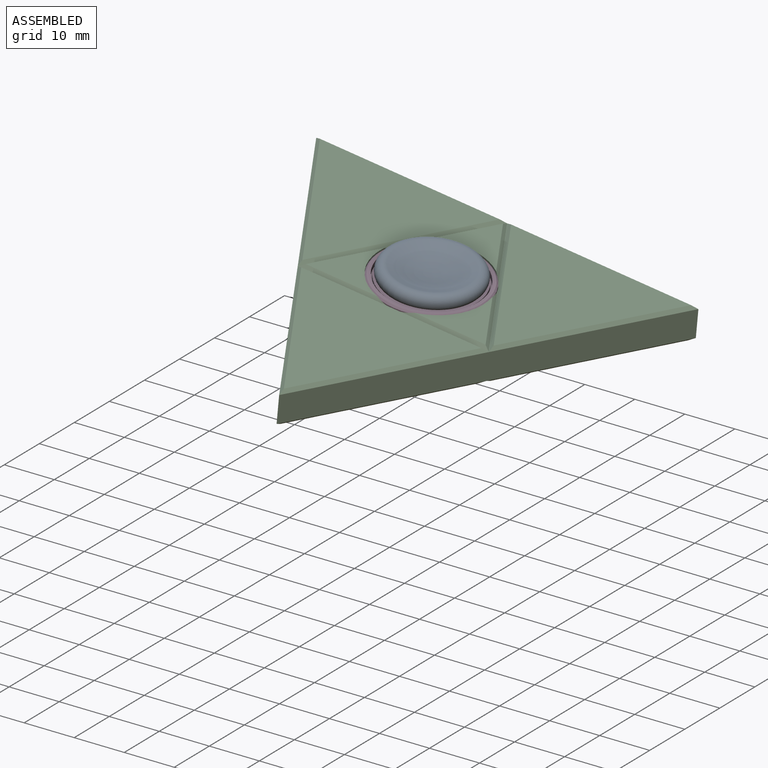
[diagram: assembled view]
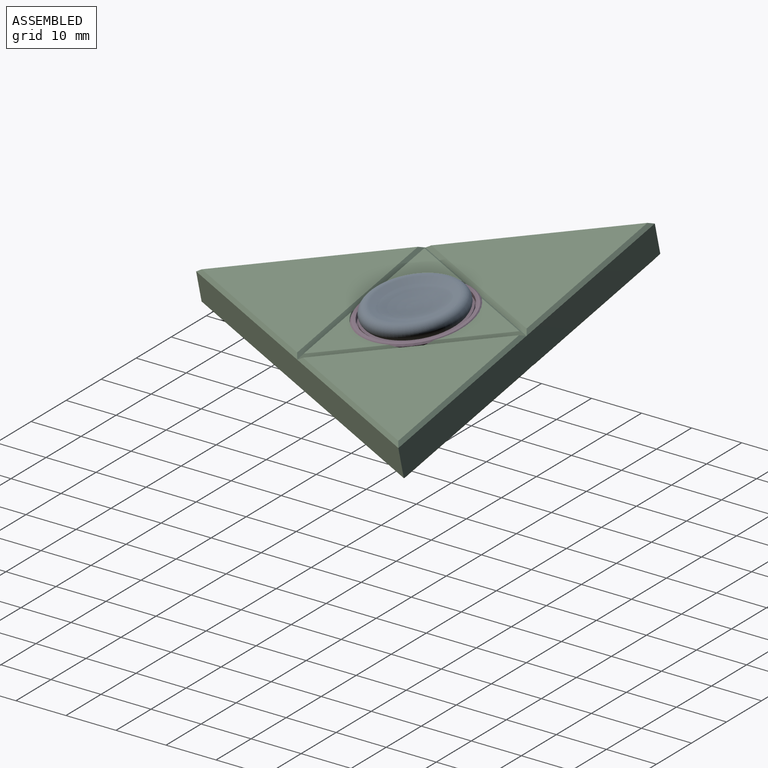
[diagram: assembled view, second angle]
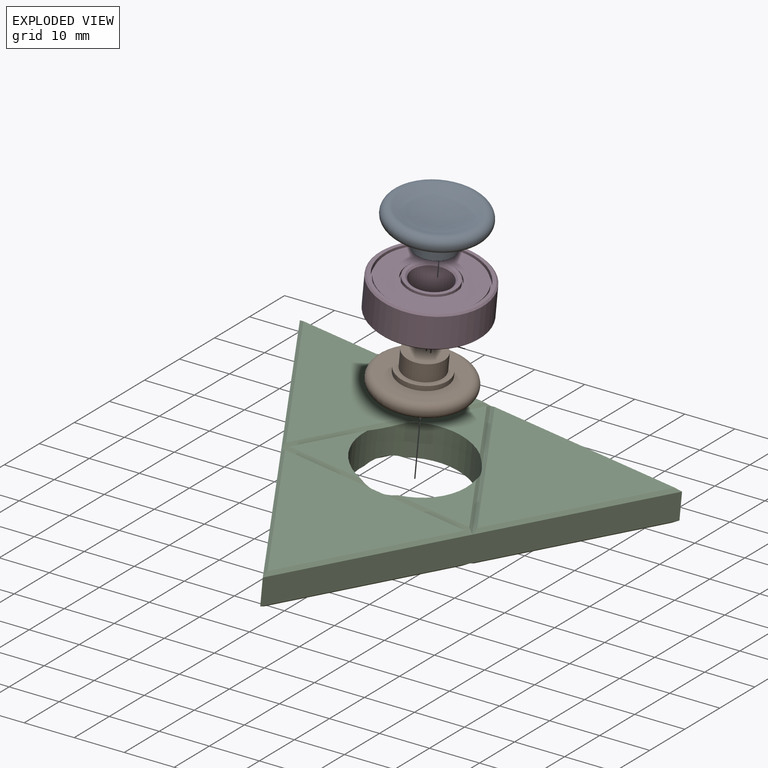
[diagram: exploded view]
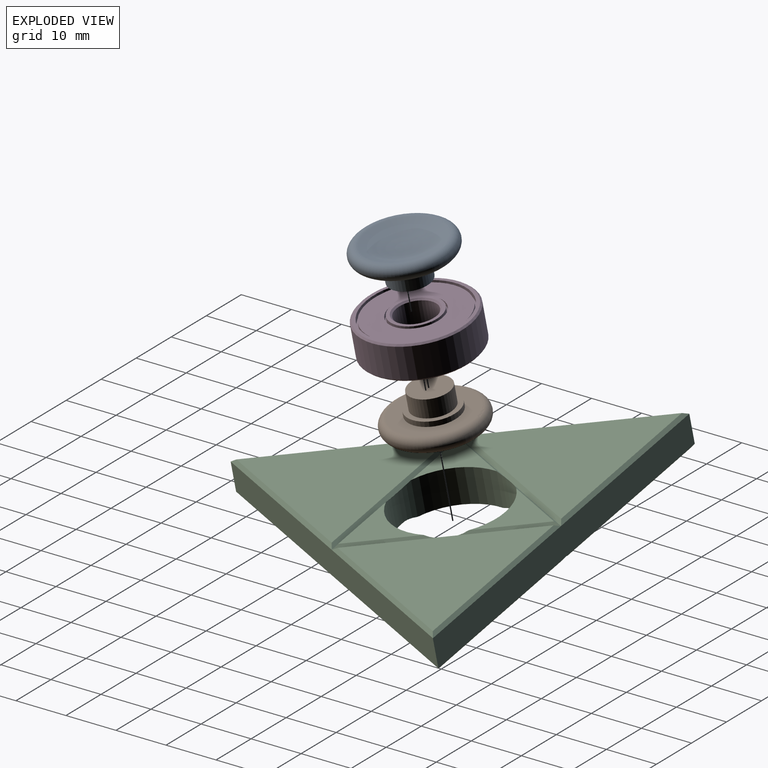
[diagram: exploded view, second angle]
ASSEMBLY  parts=4 mates=3
PART A: 7 faces, bbox 20.6x20.6x7.6 mm
  f0: torus R=8.03mm, axis (0,0,-1), area 292.7mm2, adj f1,f2
  f1: plane 16.05x16.05mm, normal (0,0,-1), area 119.8mm2, adj f0,f3
  f2: sphere r=20.88mm, area 182.2mm2, adj f0
  f3: cylinder r=5.12mm len=10.25mm, axis (0,0,1), area 32.2mm2, adj f1,f4
  f4: plane 10.25x10.25mm, normal (0,0,-1), area 30.3mm2, adj f3,f5
  f5: cylinder r=4.07mm len=8.15mm, axis (0,0,1), area 91.9mm2, adj f4,f6
  f6: plane 8.15x8.15mm, normal (0,0,-1), area 52.2mm2, adj f5
PART B: same geometry as A
PART C: 49 faces, bbox 76.2x66x7 mm
  f0: plane 65.99x38.1mm, normal (-0.87,0.5,0), area 435.5mm2, adj f12,f13,f16,f24,f27,f32,f34,f39
  f1: cylinder r=11mm len=22mm, axis (0,0,-1), area 462.9mm2, adj f2,f3,f4,f7,f8,f10,f16,f17
  f2: plane 14.19x12.27mm, normal (0,0,-1), area 61.9mm2, adj f1,f40,f41
  f3: plane 14.18x12.29mm, normal (0,0,-1), area 61.9mm2, adj f1,f44,f45
  f4: plane 14.21x12.3mm, normal (0,0,-1), area 62.1mm2, adj f1,f42,f43
  f5: plane 35.89x31.08mm, normal (0,0,-1), area 557.6mm2, adj f37,f38,f39
  f6: plane 35.89x31.08mm, normal (0,0,-1), area 557.6mm2, adj f34,f35,f36
  f7: plane 13.89x11.57mm, normal (0,0,1), area 58.3mm2, adj f1,f28,f29
  f8: plane 14.21x12.3mm, normal (0,0,1), area 62.1mm2, adj f1,f20,f33
  f9: plane 35.87x31.07mm, normal (0,0,1), area 557.2mm2, adj f21,f22,f23
  f10: plane 14.18x12.29mm, normal (0,0,1), area 61.9mm2, adj f1,f17,f18
  f11: plane 35.89x31.08mm, normal (0,0,1), area 557.6mm2, adj f30,f31,f32
  f12: plane 76.2x5.72mm, normal (0,-1,0), area 435.5mm2, adj f0,f13,f16,f23,f25,f27,f36,f47
  f13: plane 65.99x38.1mm, normal (0.87,0.5,0), area 435.5mm2, adj f0,f12,f16,f22,f27,f31,f38,f46
  f14: plane 35.89x31.08mm, normal (0,0,1), area 557.6mm2, adj f24,f25,f26
  f15: plane 35.87x31.07mm, normal (0,0,-1), area 557.2mm2, adj f46,f47,f48
  f16: plane 38.12x33.01mm, normal (0,0,1), area 3.8mm2, adj f0,f1,f12,f13,f17,f18,f19,f20
  f17: plane 15.98x9.23mm, normal (-0.61,-0.35,0.71), area 14.3mm2, adj f1,f10,f16,f18
  f18: plane 15.81x9.13mm, normal (0.61,-0.35,0.71), area 14.2mm2, adj f1,f10,f16,f17
  f19: plane 15.81x9.13mm, normal (0.61,-0.35,0.71), area 10.4mm2, adj f1,f16,f28,f29
  f20: plane 16x9.24mm, normal (-0.61,-0.35,0.71), area 14.3mm2, adj f1,f8,f16,f33
  f21: plane 32.97x19.04mm, normal (-0.61,0.35,0.71), area 33.2mm2, adj f9,f16,f22,f23
  f22: plane 32.97x19.04mm, normal (0.61,0.35,0.71), area 33.2mm2, adj f9,f13,f21,f23
  f23: plane 38.07x0.64mm, normal (0,-0.71,0.71), area 33.2mm2, adj f9,f12,f21,f22
  f24: plane 32.98x19.04mm, normal (-0.61,0.35,0.71), area 33.2mm2, adj f0,f14,f25,f26
  f25: plane 38.09x0.64mm, normal (0,-0.71,0.71), area 33.2mm2, adj f12,f14,f24,f26
  f26: plane 32.98x19.04mm, normal (0.61,0.35,0.71), area 33.2mm2, adj f14,f16,f24,f25
  f27: plane 38.12x33.01mm, normal (0,0,-1), area 3.8mm2, adj f0,f1,f12,f13,f35,f37,f40,f41
  f28: plane 13.04x7.54mm, normal (0.33,-0.19,0.92), area 6.9mm2, adj f1,f7,f19,f29
  f29: plane 18.46x0.64mm, normal (0,0.71,0.71), area 14.3mm2, adj f1,f7,f16,f19,f28
  f30: plane 38.09x0.64mm, normal (0,-0.71,0.71), area 33.2mm2, adj f11,f16,f31,f32
  f31: plane 32.98x19.04mm, normal (0.61,0.35,0.71), area 33.2mm2, adj f11,f13,f30,f32
  f32: plane 32.98x19.04mm, normal (-0.61,0.35,0.71), area 33.2mm2, adj f0,f11,f30,f31
  f33: plane 18.47x0.64mm, normal (0,0.71,0.71), area 14.3mm2, adj f1,f8,f16,f20
  f34: plane 32.98x19.04mm, normal (-0.61,0.35,-0.71), area 33.2mm2, adj f0,f6,f35,f36
  f35: plane 32.98x19.04mm, normal (0.61,0.35,-0.71), area 33.2mm2, adj f6,f27,f34,f36
  f36: plane 38.09x0.64mm, normal (0,-0.71,-0.71), area 33.2mm2, adj f6,f12,f34,f35
  f37: plane 38.09x0.64mm, normal (0,-0.71,-0.71), area 33.2mm2, adj f5,f27,f38,f39
  f38: plane 32.98x19.04mm, normal (0.61,0.35,-0.71), area 33.2mm2, adj f5,f13,f37,f39
  f39: plane 32.98x19.04mm, normal (-0.61,0.35,-0.71), area 33.2mm2, adj f0,f5,f37,f38
  f40: plane 15.81x9.13mm, normal (0.61,-0.35,-0.71), area 14.2mm2, adj f1,f2,f27,f41
  f41: plane 18.46x0.64mm, normal (0,0.71,-0.71), area 14.3mm2, adj f1,f2,f27,f40
  f42: plane 16x9.24mm, normal (-0.61,-0.35,-0.71), area 14.3mm2, adj f1,f4,f27,f43
  f43: plane 18.47x0.64mm, normal (0,0.71,-0.71), area 14.3mm2, adj f1,f4,f27,f42
  f44: plane 15.81x9.13mm, normal (0.61,-0.35,-0.71), area 14.2mm2, adj f1,f3,f27,f45
  f45: plane 15.98x9.23mm, normal (-0.61,-0.35,-0.71), area 14.3mm2, adj f1,f3,f27,f44
  f46: plane 32.97x19.04mm, normal (0.61,0.35,-0.71), area 33.2mm2, adj f13,f15,f47,f48
  f47: plane 38.07x0.64mm, normal (0,-0.71,-0.71), area 33.2mm2, adj f12,f15,f46,f48
  f48: plane 32.97x19.04mm, normal (-0.61,0.35,-0.71), area 33.2mm2, adj f15,f27,f46,f47
PART D: 32 faces, bbox 22x7x22 mm
  f0: cylinder r=10mm len=20mm, axis (0,1,0), area 62.8mm2, adj f1,f19
  f1: plane 21.34x21.34mm, normal (0,1,0), area 43.5mm2, adj f0,f21
  f2: cylinder r=11mm len=22mm, axis (0,1,0), area 438.2mm2, adj f20,f21
  f3: plane 21.34x21.34mm, normal (0,-1,0), area 43.5mm2, adj f4,f20
  f4: cylinder r=10mm len=20mm, axis (0,1,0), area 62.8mm2, adj f3,f5
  f5: plane 20x20mm, normal (0,-1,0), area 18.1mm2, adj f4,f6
  f6: cylinder r=9.71mm len=19.42mm, axis (0,1,0), area 44.7mm2, adj f5,f7
  f7: plane 19.42x19.42mm, normal (0,-1,0), area 208.1mm2, adj f6,f8
  f8: cylinder r=5.29mm len=10.58mm, axis (0,1,0), area 24.4mm2, adj f7,f9
  f9: plane 10.58x10.58mm, normal (0,-1,0), area 9.4mm2, adj f8,f10
  f10: cylinder r=5mm len=10mm, axis (0,1,0), area 31.4mm2, adj f9,f11
  f11: plane 10x10mm, normal (0,-1,0), area 19.6mm2, adj f10,f22
  f12: cylinder r=4mm len=8mm, axis (0,1,0), area 159.3mm2, adj f22,f23
  f13: plane 10x10mm, normal (0,1,0), area 19.6mm2, adj f14,f23
  f14: cylinder r=5mm len=10mm, axis (0,1,0), area 31.4mm2, adj f13,f15
  f15: plane 10.58x10.58mm, normal (0,1,0), area 9.4mm2, adj f14,f16
  f16: cylinder r=5.29mm len=10.58mm, axis (0,1,0), area 24.4mm2, adj f15,f17
  f17: plane 19.42x19.42mm, normal (0,1,0), area 208.1mm2, adj f16,f18
  f18: cylinder r=9.71mm len=19.42mm, axis (0,1,0), area 44.7mm2, adj f17,f19
  f19: plane 20x20mm, normal (0,1,0), area 18.1mm2, adj f0,f18
  f20: cone r=11mm half-angle=45deg, axis (0,1,0), area 31.8mm2, adj f2,f3
  f21: cone r=10.67mm half-angle=45deg, axis (0,-1,0), area 31.8mm2, adj f1,f2
  f22: cone r=4.33mm half-angle=45deg, axis (0,-1,0), area 12.2mm2, adj f11,f12
  f23: cone r=4mm half-angle=45deg, axis (0,1,0), area 12.2mm2, adj f12,f13
  f24: cylinder r=8.16mm len=16.32mm, axis (0,1,0), area 48.4mm2, adj f25,f31
  f25: torus R=7.5mm, axis (0,1,0), area 219.3mm2, adj f24,f26
  f26: cylinder r=8.16mm len=16.32mm, axis (0,1,0), area 48.4mm2, adj f25,f27
  f27: plane 16.32x16.32mm, normal (0,-1,0), area 62.1mm2, adj f26,f28
  f28: cylinder r=6.84mm len=13.68mm, axis (0,1,0), area 40.6mm2, adj f27,f29
  f29: torus R=7.5mm, axis (0,1,0), area 153.3mm2, adj f28,f30
  f30: cylinder r=6.84mm len=13.68mm, axis (0,1,0), area 40.6mm2, adj f29,f31
  f31: plane 16.32x16.32mm, normal (0,1,0), area 62.1mm2, adj f24,f30
PLACE A rot(axis=(0.5,0.86,0.08),10deg) t=(8.39,-60.08,5.8)mm
PLACE B rot(axis=(-1,-0.01,0.08),175deg) t=(7.34,-59.48,-1.06)mm
PLACE C rot(axis=(-1,-0.01,0.08),175deg) t=(8.5,-60.14,6.49)mm
PLACE D rot(axis=(0.99,0.08,-0.07),95.3deg) t=(7.97,-59.84,3.05)mm fixed
MATE cylindrical A.f0 <-> D.f0  axis (0.15,-0.09,0.98) through (7.97,-59.84,3.05)mm
MATE revolute D.f0 <-> C.f1  axis (0.15,-0.09,0.98) through (7.97,-59.84,3.05)mm
MATE cylindrical B.f0 <-> D.f0  axis (-0.15,0.09,-0.98) through (7.5,-59.57,-0.07)mm
